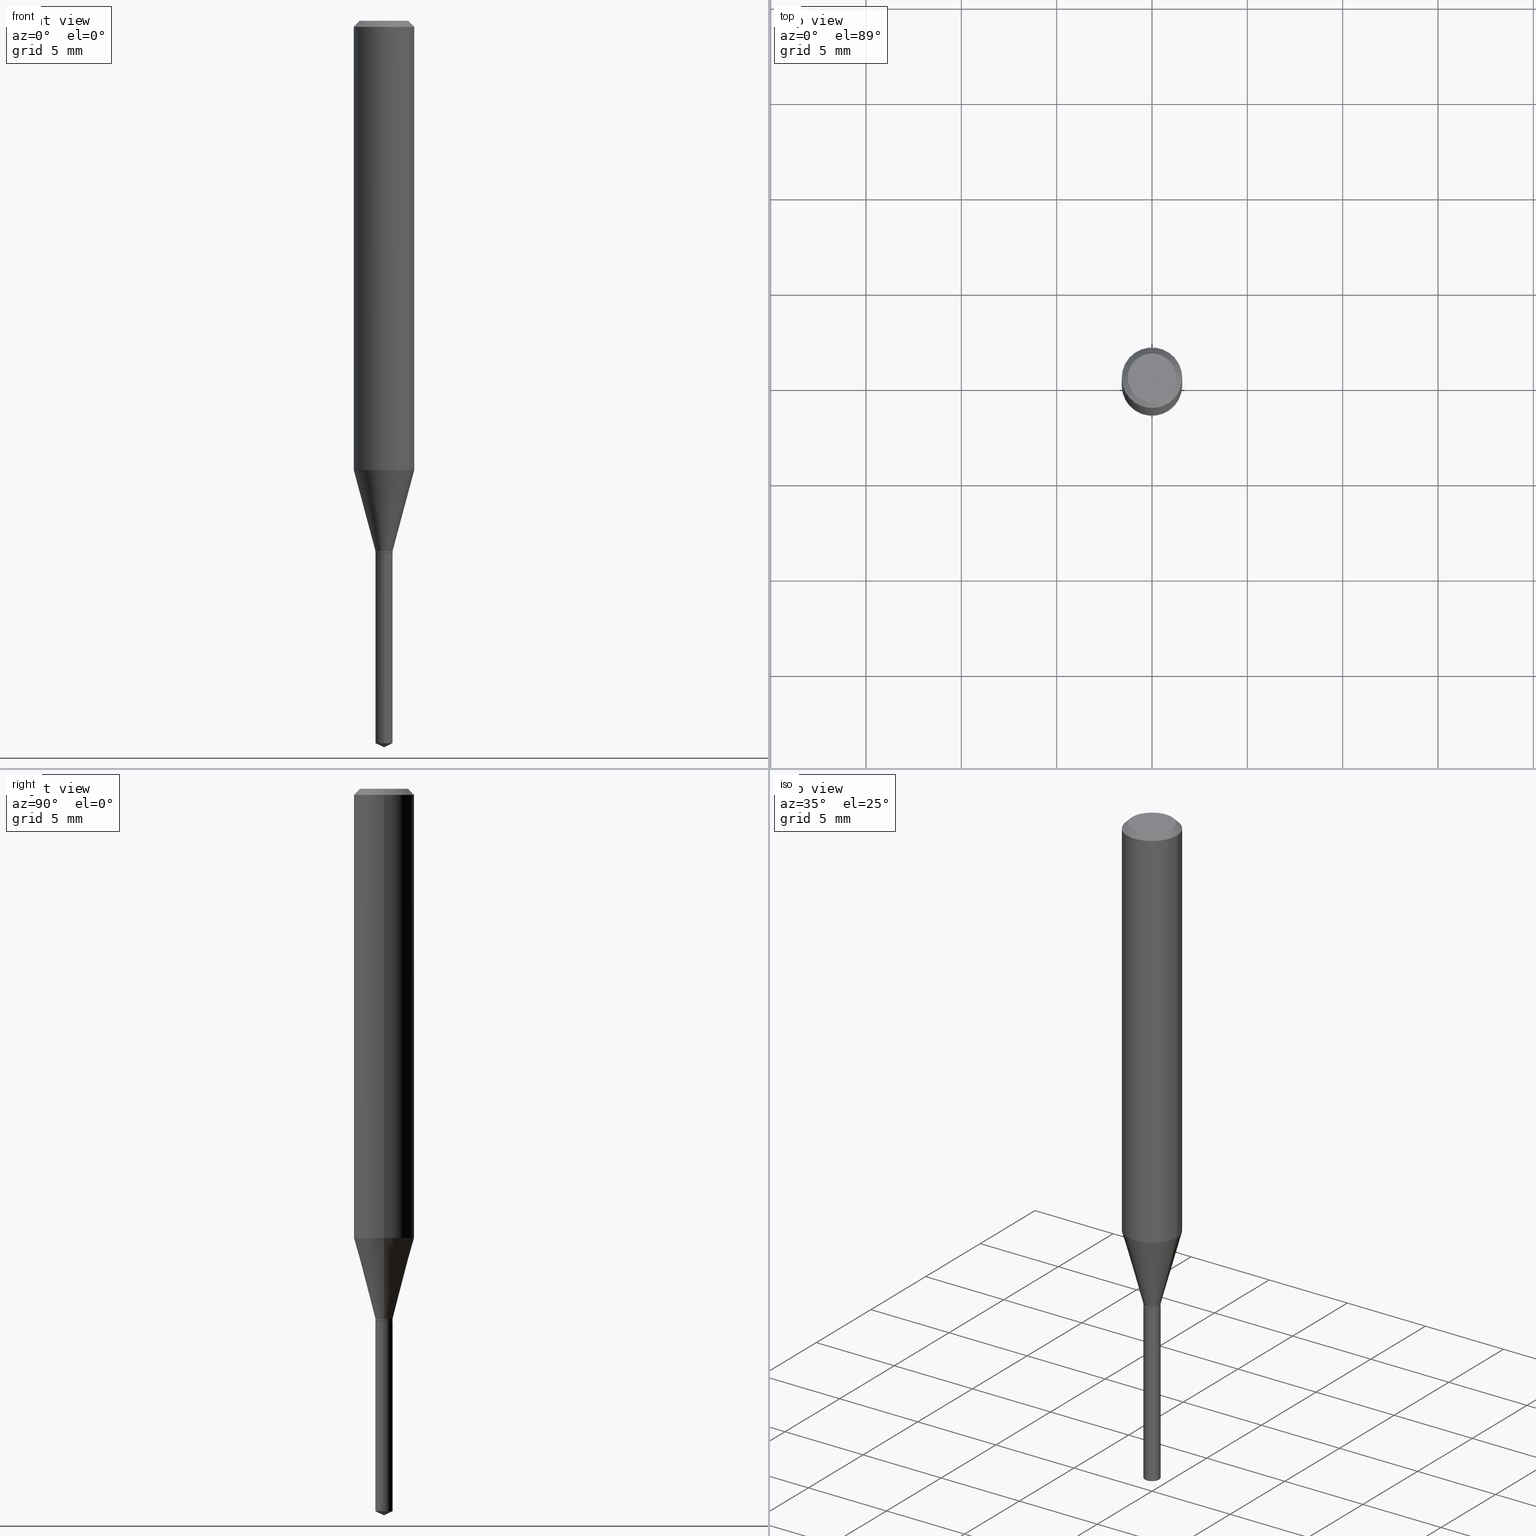
[diagram: canonical four-view strip — front | top / right | iso, engineering-drawing reading convention]
A machine part, canonical four-view strip (front | top / right | iso — engineering-drawing reading convention). The complete STEP part file that produces these views, byte-faithful:
ISO-10303-21;
HEADER;
FILE_DESCRIPTION (( 'STEP AP203' ),
    '1' );
FILE_NAME ('07313.STEP',
    '2024-04-23T20:23:08',
    ( '' ),
    ( '' ),
    'SwSTEP 2.0',
    'SolidWorks 2023',
    '' );
FILE_SCHEMA (( 'CONFIG_CONTROL_DESIGN' ));
ENDSEC;

DATA;
#1 = EDGE_LOOP ( 'NONE', ( #441, #448, #199, #353 ) ) ;
#2 = ADVANCED_FACE ( 'NONE', ( #422 ), #90, .F. ) ;
#3 = DIRECTION ( 'NONE',  ( -2.445399690415121530E-29, 3.491580316559632610E-15, 1.000000000000000000 ) ) ;
#4 = CARTESIAN_POINT ( 'NONE',  ( 2.690015686803650369E-29, -3.840629472727460101E-15, -1.100000000000000089 ) ) ;
#5 = AXIS2_PLACEMENT_3D ( 'NONE', #134, #209, #207 ) ;
#6 = EDGE_CURVE ( 'NONE', #192, #401, #397, .T. ) ;
#7 = CIRCLE ( 'NONE', #146, 0.01770000000000000046 ) ;
#8 = VERTEX_POINT ( 'NONE', #40 ) ;
#9 = CC_DESIGN_PERSON_AND_ORGANIZATION_ASSIGNMENT ( #459, #127, ( #184 ) ) ;
#10 = PERSON_AND_ORGANIZATION ( #159, #68 ) ;
#11 = CARTESIAN_POINT ( 'NONE',  ( -0.06250000000000000000, -1.196914218528098543E-15, -0.01250000000000008049 ) ) ;
#12 = COORDINATED_UNIVERSAL_TIME_OFFSET ( 5, 0, .BEHIND. ) ;
#13 = CARTESIAN_POINT ( 'NONE',  ( -0.01720000000000000001, -3.715766895002611718E-15, -1.100000000000000089 ) ) ;
#14 = CALENDAR_DATE ( 2024, 23, 4 ) ;
#15 = VECTOR ( 'NONE', #341, 39.37007874015748143 ) ;
#16 = LINE ( 'NONE', #428, #79 ) ;
#17 = EDGE_CURVE ( 'NONE', #147, #364, #452, .T. ) ;
#18 = CARTESIAN_POINT ( 'NONE',  ( 0.000000000000000000, 0.000000000000000000, 0.000000000000000000 ) ) ;
#19 = DIRECTION ( 'NONE',  ( -2.445468806185136597E-29, 3.491481338843145583E-15, 1.000000000000000000 ) ) ;
#20 = ADVANCED_FACE ( 'NONE', ( #196 ), #155, .T. ) ;
#21 = LINE ( 'NONE', #113, #92 ) ;
#22 = VECTOR ( 'NONE', #358, 39.37007874015748143 ) ;
#23 = AXIS2_PLACEMENT_3D ( 'NONE', #316, #190, #312 ) ;
#24 = ORIENTED_EDGE ( 'NONE', *, *, #73, .T. ) ;
#25 = CIRCLE ( 'NONE', #489, 0.01769999999999999699 ) ;
#26 = VECTOR ( 'NONE', #217, 39.37007874015748143 ) ;
#27 = DIRECTION ( 'NONE',  ( -2.445468806185136597E-29, 3.491481338843145583E-15, 1.000000000000000000 ) ) ;
#28 = ORIENTED_EDGE ( 'NONE', *, *, #167, .T. ) ;
#29 = PRODUCT_DEFINITION_SHAPE ( 'NONE', 'NONE',  #329 ) ;
#30 = CARTESIAN_POINT ( 'NONE',  ( -0.06250000000000005551, 4.440892098500630106E-16, -3.074334431409318916E-30 ) ) ;
#31 = VERTEX_POINT ( 'NONE', #349 ) ;
#32 = DIRECTION ( 'NONE',  ( 2.445468806185136597E-29, -3.491481338843145583E-15, -1.000000000000000000 ) ) ;
#33 = ORIENTED_EDGE ( 'NONE', *, *, #144, .T. ) ;
#34 = CIRCLE ( 'NONE', #411, 0.06250000000000000000 ) ;
#35 = EDGE_CURVE ( 'NONE', #77, #85, #25, .T. ) ;
#36 = CONICAL_SURFACE ( 'NONE', #372, 0.01770000000000000046, 0.2617993877991499629 ) ;
#37 = FACE_OUTER_BOUND ( 'NONE', #373, .T. ) ;
#38 = VERTEX_POINT ( 'NONE', #381 ) ;
#39 = MECHANICAL_CONTEXT ( 'NONE', #64, 'mechanical' ) ;
#40 = CARTESIAN_POINT ( 'NONE',  ( -0.06250000000000012490, -2.794274130170721718E-15, -0.9275041238209144057 ) ) ;
#41 = ADVANCED_FACE ( 'NONE', ( #272 ), #80, .T. ) ;
#42 = DIRECTION ( 'NONE',  ( -2.445399690415121810E-29, 3.491580316559632610E-15, 1.000000000000000000 ) ) ;
#43 = ORIENTED_EDGE ( 'NONE', *, *, #419, .F. ) ;
#44 =( NAMED_UNIT ( * ) SI_UNIT ( $, .STERADIAN. ) SOLID_ANGLE_UNIT ( ) );
#45 = CC_DESIGN_PERSON_AND_ORGANIZATION_ASSIGNMENT ( #250, #200, ( #317 ) ) ;
#46 = DIRECTION ( 'NONE',  ( 1.000000000000000000, -6.982962677686266711E-15, 0.000000000000000000 ) ) ;
#47 = DIRECTION ( 'NONE',  ( 1.000000000000000000, -6.982962677686271444E-15, 0.000000000000000000 ) ) ;
#48 = EDGE_LOOP ( 'NONE', ( #342, #340, #315 ) ) ;
#49 = ADVANCED_FACE ( 'NONE', ( #136 ), #283, .F. ) ;
#50 = DIRECTION ( 'NONE',  ( -2.445399690415121530E-29, 3.491580316559632610E-15, 1.000000000000000000 ) ) ;
#51 = AXIS2_PLACEMENT_3D ( 'NONE', #257, #224, #338 ) ;
#52 = CC_DESIGN_APPROVAL ( #249, ( #329 ) ) ;
#53 = DIRECTION ( 'NONE',  ( 1.000000000000000000, -6.982962677686265922E-15, 4.876176775795935232E-29 ) ) ;
#54 = CARTESIAN_POINT ( 'NONE',  ( 2.690015686803650369E-29, -3.840629472727460101E-15, -1.100000000000000089 ) ) ;
#55 = PERSON_AND_ORGANIZATION_ROLE ( 'classification_officer' ) ;
#56 = ADVANCED_FACE ( 'NONE', ( #100 ), #205, .T. ) ;
#57 = DIRECTION ( 'NONE',  ( 1.000000000000000000, -6.982962677686270655E-15, 0.000000000000000000 ) ) ;
#58 = APPROVAL_ROLE ( '' ) ;
#59 = CARTESIAN_POINT ( 'NONE',  ( 0.01720000000000000001, -3.960736430783664280E-15, -1.100000000000000089 ) ) ;
#60 = CC_DESIGN_PERSON_AND_ORGANIZATION_ASSIGNMENT ( #355, #99, ( #317 ) ) ;
#61 = AXIS2_PLACEMENT_3D ( 'NONE', #294, #440, #334 ) ;
#62 = CARTESIAN_POINT ( 'NONE',  ( 2.268182402412122745E-29, -3.238363340020784728E-15, -0.9275041238209144057 ) ) ;
#63 = ADVANCED_FACE ( 'NONE', ( #170 ), #256, .T. ) ;
#64 = APPLICATION_CONTEXT ( 'configuration controlled 3d designs of mechanical parts and assemblies' ) ;
#65 = DIRECTION ( 'NONE',  ( -2.445399690415121530E-29, 3.491580316559632610E-15, 1.000000000000000000 ) ) ;
#66 = EDGE_LOOP ( 'NONE', ( #274, #231, #439, #225 ) ) ;
#67 = DIRECTION ( 'NONE',  ( -2.445468806185136597E-29, 3.491481338843145583E-15, 1.000000000000000000 ) ) ;
#68 = ORGANIZATION ( 'UNSPECIFIED', 'UNSPECIFIED', '' ) ;
#69 = ORIENTED_EDGE ( 'NONE', *, *, #144, .F. ) ;
#70 = DIRECTION ( 'NONE',  ( -6.982962677686265133E-15, -1.000000000000000000, 0.000000000000000000 ) ) ;
#71 = ORIENTED_EDGE ( 'NONE', *, *, #303, .F. ) ;
#72 = DIRECTION ( 'NONE',  ( -1.000000000000000000, 6.982962677686266711E-15, 0.000000000000000000 ) ) ;
#73 = EDGE_CURVE ( 'NONE', #264, #302, #16, .T. ) ;
#74 = ORIENTED_EDGE ( 'NONE', *, *, #275, .T. ) ;
#75 = CARTESIAN_POINT ( 'NONE',  ( 2.690015686803650369E-29, -3.840629472727460101E-15, -1.100000000000000089 ) ) ;
#76 = CIRCLE ( 'NONE', #473, 0.01770000000000000046 ) ;
#77 = VERTEX_POINT ( 'NONE', #471 ) ;
#78 = CC_DESIGN_PERSON_AND_ORGANIZATION_ASSIGNMENT ( #174, #102, ( #329 ) ) ;
#79 = VECTOR ( 'NONE', #288, 39.37007874015748854 ) ;
#80 = CYLINDRICAL_SURFACE ( 'NONE', #398, 0.06250000000000005551 ) ;
#81 = ADVANCED_FACE ( 'NONE', ( #391 ), #285, .T. ) ;
#82 = CARTESIAN_POINT ( 'NONE',  ( -1.235984393950199948E-16, -0.01770000000000384113, -1.100000000000000089 ) ) ;
#83 = DIRECTION ( 'NONE',  ( -2.445468806185136597E-29, 3.491481338843145583E-15, 1.000000000000000000 ) ) ;
#84 = LENGTH_MEASURE_WITH_UNIT ( LENGTH_MEASURE( 0.02539999999999999897 ), #276 );
#85 = VERTEX_POINT ( 'NONE', #292 ) ;
#86 = DIRECTION ( 'NONE',  ( 2.445468806185136597E-29, -3.491481338843145583E-15, -1.000000000000000000 ) ) ;
#87 = EDGE_CURVE ( 'NONE', #124, #85, #168, .T. ) ;
#88 = CARTESIAN_POINT ( 'NONE',  ( -9.260740279983036507E-28, 1.322265303911854087E-13, 37.87007874015748143 ) ) ;
#89 = DIRECTION ( 'NONE',  ( 0.7071067811865453523, -7.319954787623248157E-15, -0.7071067811865496822 ) ) ;
#90 = PLANE ( 'NONE',  #347 ) ;
#91 = CYLINDRICAL_SURFACE ( 'NONE', #119, 0.01770000000000000046 ) ;
#92 = VECTOR ( 'NONE', #267, 39.37007874015748143 ) ;
#93 = CONICAL_SURFACE ( 'NONE', #188, 84.42940631927444883, 1.134464013796316451 ) ;
#94 = CALENDAR_DATE ( 2024, 23, 4 ) ;
#95 = MANIFOLD_SOLID_BREP ( 'Body-Move/Copy2[2]', #421 ) ;
#96 = AXIS2_PLACEMENT_3D ( 'NONE', #62, #320, #431 ) ;
#97 = DIRECTION ( 'NONE',  ( -6.328713451373376478E-15, -0.9063077870366493816, 0.4226182617407006070 ) ) ;
#98 = EDGE_CURVE ( 'NONE', #85, #401, #251, .T. ) ;
#99 = PERSON_AND_ORGANIZATION_ROLE ( 'design_supplier' ) ;
#100 = FACE_OUTER_BOUND ( 'NONE', #458, .T. ) ;
#101 = APPROVAL ( #357, 'UNSPECIFIED' ) ;
#102 = PERSON_AND_ORGANIZATION_ROLE ( 'creator' ) ;
#103 = CARTESIAN_POINT ( 'NONE',  ( 3.668099535622682155E-29, -5.237370474839448718E-15, -1.500000000000000222 ) ) ;
#104 = DATE_AND_TIME ( #465, #418 ) ;
#105 = DIRECTION ( 'NONE',  ( 1.000000000000000000, -6.982962677686265922E-15, 0.000000000000000000 ) ) ;
#106 = AXIS2_PLACEMENT_3D ( 'NONE', #54, #361, #290 ) ;
#107 = CARTESIAN_POINT ( 'NONE',  ( 2.688792952400557567E-29, -3.838883732058038598E-15, -1.099499999999999922 ) ) ;
#108 = LINE ( 'NONE', #260, #322 ) ;
#109 = ORIENTED_EDGE ( 'NONE', *, *, #117, .T. ) ;
#110 = DIRECTION ( 'NONE',  ( 1.000000000000000000, -6.982962677686271444E-15, 0.000000000000000000 ) ) ;
#111 = CYLINDRICAL_SURFACE ( 'NONE', #450, 0.01770000000000000046 ) ;
#112 = VERTEX_POINT ( 'NONE', #13 ) ;
#113 = CARTESIAN_POINT ( 'NONE',  ( -0.01720000000000000001, -3.718416122176722919E-15, -1.100000000000000089 ) ) ;
#114 = VERTEX_POINT ( 'NONE', #394 ) ;
#115 = CIRCLE ( 'NONE', #96, 0.06250000000000011102 ) ;
#116 = CARTESIAN_POINT ( 'NONE',  ( 3.647992100698539109E-29, -5.208443333011366930E-15, -1.491746354450656620 ) ) ;
#117 = EDGE_CURVE ( 'NONE', #31, #313, #462, .T. ) ;
#118 =( GEOMETRIC_REPRESENTATION_CONTEXT ( 3 ) GLOBAL_UNCERTAINTY_ASSIGNED_CONTEXT ( ( #445 ) ) GLOBAL_UNIT_ASSIGNED_CONTEXT ( ( #191, #153, #44 ) ) REPRESENTATION_CONTEXT ( 'NONE', 'WORKASPACE' ) );
#119 = AXIS2_PLACEMENT_3D ( 'NONE', #246, #392, #53 ) ;
#120 = DIRECTION ( 'NONE',  ( -2.445468806185136597E-29, 3.491481338843145583E-15, 1.000000000000000000 ) ) ;
#121 = DESIGN_CONTEXT ( 'detailed design', #389, 'design' ) ;
#122 = EDGE_LOOP ( 'NONE', ( #414, #319, #480, #331 ) ) ;
#123 = DIRECTION ( 'NONE',  ( -6.982962677686265133E-15, -1.000000000000000000, 0.000000000000000000 ) ) ;
#124 = VERTEX_POINT ( 'NONE', #176 ) ;
#125 = AXIS2_PLACEMENT_3D ( 'NONE', #139, #178, #330 ) ;
#126 = EDGE_CURVE ( 'NONE', #302, #8, #460, .T. ) ;
#127 = PERSON_AND_ORGANIZATION_ROLE ( 'design_owner' ) ;
#128 = ORIENTED_EDGE ( 'NONE', *, *, #173, .T. ) ;
#129 = DATE_AND_TIME ( #94, #293 ) ;
#130 = CARTESIAN_POINT ( 'NONE',  ( 2.690015686803650369E-29, -3.840629472727460101E-15, -1.100000000000000089 ) ) ;
#131 = FACE_OUTER_BOUND ( 'NONE', #333, .T. ) ;
#132 = DIRECTION ( 'NONE',  ( -2.445468806185136597E-29, 3.491481338843145583E-15, 1.000000000000000000 ) ) ;
#133 = DATE_TIME_ROLE ( 'classification_date' ) ;
#134 = CARTESIAN_POINT ( 'NONE',  ( 2.690015686803650369E-29, -3.840629472727460101E-15, -1.100000000000000089 ) ) ;
#135 = EDGE_CURVE ( 'NONE', #269, #154, #474, .T. ) ;
#136 = FACE_OUTER_BOUND ( 'NONE', #407, .T. ) ;
#137 = CIRCLE ( 'NONE', #436, 0.01720000000000000001 ) ;
#138 = CONICAL_SURFACE ( 'NONE', #467, 0.06250000000000000000, 0.7853981633974452814 ) ;
#139 = CARTESIAN_POINT ( 'NONE',  ( 3.647992100698539109E-29, -5.208443333011366930E-15, -1.491746354450656620 ) ) ;
#140 = AXIS2_PLACEMENT_3D ( 'NONE', #187, #65, #475 ) ;
#141 = CARTESIAN_POINT ( 'NONE',  ( 2.677054702130869363E-29, -3.822124621631592164E-15, -1.094700000000000228 ) ) ;
#142 = FACE_OUTER_BOUND ( 'NONE', #158, .T. ) ;
#143 = EDGE_LOOP ( 'NONE', ( #278, #237 ) ) ;
#144 = EDGE_CURVE ( 'NONE', #38, #114, #362, .T. ) ;
#145 = FACE_OUTER_BOUND ( 'NONE', #405, .T. ) ;
#146 = AXIS2_PLACEMENT_3D ( 'NONE', #453, #120, #47 ) ;
#147 = VERTEX_POINT ( 'NONE', #11 ) ;
#148 = DIRECTION ( 'NONE',  ( -2.445468806185136877E-29, 3.491481338843145188E-15, 1.000000000000000000 ) ) ;
#149 = EDGE_LOOP ( 'NONE', ( #266, #378, #223, #403 ) ) ;
#150 = ADVANCED_FACE ( 'NONE', ( #131 ), #91, .T. ) ;
#151 = DIRECTION ( 'NONE',  ( -1.000000000000000000, 6.982962677686266711E-15, 0.000000000000000000 ) ) ;
#152 = ORIENTED_EDGE ( 'NONE', *, *, #162, .F. ) ;
#153 =( NAMED_UNIT ( * ) PLANE_ANGLE_UNIT ( ) SI_UNIT ( $, .RADIAN. ) );
#154 = VERTEX_POINT ( 'NONE', #252 ) ;
#155 = CONICAL_SURFACE ( 'NONE', #222, 84.42940631927444883, 1.134464013796316451 ) ;
#156 = AXIS2_PLACEMENT_3D ( 'NONE', #404, #67, #327 ) ;
#157 = CARTESIAN_POINT ( 'NONE',  ( 0.06250000000000000000, -4.724246415962602840E-16, -0.01250000000000008049 ) ) ;
#158 = EDGE_LOOP ( 'NONE', ( #348, #456, #227, #165 ) ) ;
#159 = PERSON ( 'UNSPECIFIED', 'UNSPECIFIED', 'UNSPECIFIED', ('UNSPECIFIED'), ('UNSPECIFIED'), ('UNSPECIFIED') ) ;
#160 = DIRECTION ( 'NONE',  ( -6.982962677686266711E-15, -1.000000000000000000, 3.520397390770449137E-15 ) ) ;
#161 = ORIENTED_EDGE ( 'NONE', *, *, #87, .F. ) ;
#162 = EDGE_CURVE ( 'NONE', #8, #302, #115, .T. ) ;
#163 = DIRECTION ( 'NONE',  ( 2.445399690415121250E-29, -3.491580316559632610E-15, -1.000000000000000000 ) ) ;
#164 = CIRCLE ( 'NONE', #51, 0.01770000000000000046 ) ;
#165 = ORIENTED_EDGE ( 'NONE', *, *, #369, .F. ) ;
#166 = DATE_AND_TIME ( #169, #442 ) ;
#167 = EDGE_CURVE ( 'NONE', #38, #112, #229, .T. ) ;
#168 = LINE ( 'NONE', #103, #179 ) ;
#169 = CALENDAR_DATE ( 2024, 23, 4 ) ;
#170 = FACE_OUTER_BOUND ( 'NONE', #484, .T. ) ;
#171 = LOCAL_TIME ( 16, 23, 8.000000000000000000, #12 ) ;
#172 = DIRECTION ( 'NONE',  ( -2.445468806185136597E-29, 3.491481338843145583E-15, 1.000000000000000000 ) ) ;
#173 = EDGE_CURVE ( 'NONE', #112, #38, #137, .T. ) ;
#174 = PERSON_AND_ORGANIZATION ( #159, #68 ) ;
#175 = DIRECTION ( 'NONE',  ( -2.445468806185136597E-29, 3.491481338843145583E-15, 1.000000000000000000 ) ) ;
#176 = CARTESIAN_POINT ( 'NONE',  ( 3.668099535622682715E-29, -5.237370474839449507E-15, -1.500000000000000222 ) ) ;
#177 = VECTOR ( 'NONE', #221, 39.37007874015748854 ) ;
#178 = DIRECTION ( 'NONE',  ( -2.445399690415121530E-29, 3.491580316559632610E-15, 1.000000000000000000 ) ) ;
#179 = VECTOR ( 'NONE', #97, 39.37007874015748143 ) ;
#180 = EDGE_LOOP ( 'NONE', ( #186, #128, #33, #258 ) ) ;
#181 = DIRECTION ( 'NONE',  ( -2.445468806185136597E-29, 3.491481338843145583E-15, 1.000000000000000000 ) ) ;
#182 = ADVANCED_FACE ( 'NONE', ( #470 ), #444, .T. ) ;
#183 = ORIENTED_EDGE ( 'NONE', *, *, #126, .F. ) ;
#184 = PRODUCT ( '07313', '07313', '', ( #39 ) ) ;
#185 = LINE ( 'NONE', #483, #247 ) ;
#186 = ORIENTED_EDGE ( 'NONE', *, *, #336, .F. ) ;
#187 = CARTESIAN_POINT ( 'NONE',  ( 2.690015686803650369E-29, -3.840629472727460101E-15, -1.100000000000000089 ) ) ;
#188 = AXIS2_PLACEMENT_3D ( 'NONE', #377, #238, #160 ) ;
#189 = EDGE_CURVE ( 'NONE', #31, #114, #311, .T. ) ;
#190 = DIRECTION ( 'NONE',  ( -2.445468806185136597E-29, 3.491481338843145583E-15, 1.000000000000000000 ) ) ;
#191 =( CONVERSION_BASED_UNIT ( 'INCH', #84 ) LENGTH_UNIT ( ) NAMED_UNIT ( #235 ) );
#192 = VERTEX_POINT ( 'NONE', #300 ) ;
#193 = CARTESIAN_POINT ( 'NONE',  ( 3.056836007731440539E-31, -4.364351673553960451E-17, -0.01250000000000008049 ) ) ;
#194 = VECTOR ( 'NONE', #89, 39.37007874015748143 ) ;
#195 = ORIENTED_EDGE ( 'NONE', *, *, #481, .F. ) ;
#196 = FACE_OUTER_BOUND ( 'NONE', #48, .T. ) ;
#197 = EDGE_CURVE ( 'NONE', #313, #264, #365, .T. ) ;
#198 = LINE ( 'NONE', #157, #194 ) ;
#199 = ORIENTED_EDGE ( 'NONE', *, *, #98, .T. ) ;
#200 = PERSON_AND_ORGANIZATION_ROLE ( 'creator' ) ;
#201 = DIRECTION ( 'NONE',  ( -6.982962677686266711E-15, -1.000000000000000000, 3.520397390770449137E-15 ) ) ;
#202 = VECTOR ( 'NONE', #406, 39.37007874015748143 ) ;
#203 = AXIS2_PLACEMENT_3D ( 'NONE', #490, #307, #273 ) ;
#204 = ADVANCED_FACE ( 'NONE', ( #218 ), #36, .T. ) ;
#205 = CONICAL_SURFACE ( 'NONE', #286, 0.01770000000000000046, 0.2617993877991499629 ) ;
#206 = APPROVAL_ROLE ( '' ) ;
#207 = DIRECTION ( 'NONE',  ( -6.982962677686265133E-15, -1.000000000000000000, 0.000000000000000000 ) ) ;
#208 = SECURITY_CLASSIFICATION_LEVEL ( 'unclassified' ) ;
#209 = DIRECTION ( 'NONE',  ( -2.445399690415121530E-29, 3.491580316559632610E-15, 1.000000000000000000 ) ) ;
#210 = PERSON_AND_ORGANIZATION ( #159, #68 ) ;
#211 = CARTESIAN_POINT ( 'NONE',  ( 2.690015686803650369E-29, -3.840629472727460101E-15, -1.100000000000000089 ) ) ;
#212 = AXIS2_PLACEMENT_3D ( 'NONE', #277, #83, #46 ) ;
#213 = DATE_TIME_ROLE ( 'creation_date' ) ;
#214 = AXIS2_PLACEMENT_3D ( 'NONE', #416, #383, #123 ) ;
#215 = DIRECTION ( 'NONE',  ( 0.7071067811865218156, -2.468850131081987665E-15, 0.7071067811865732189 ) ) ;
#216 = ADVANCED_FACE ( 'NONE', ( #37 ), #111, .T. ) ;
#217 = DIRECTION ( 'NONE',  ( -2.445468806185136877E-29, 3.491481338843145188E-15, 1.000000000000000000 ) ) ;
#218 = FACE_OUTER_BOUND ( 'NONE', #351, .T. ) ;
#219 = ORIENTED_EDGE ( 'NONE', *, *, #189, .T. ) ;
#220 = AXIS2_PLACEMENT_3D ( 'NONE', #420, #241, #380 ) ;
#221 = DIRECTION ( 'NONE',  ( -0.2588190451025212391, 5.211531920934549464E-15, 0.9659258262890679791 ) ) ;
#222 = AXIS2_PLACEMENT_3D ( 'NONE', #88, #50, #201 ) ;
#223 = ORIENTED_EDGE ( 'NONE', *, *, #369, .T. ) ;
#224 = DIRECTION ( 'NONE',  ( -2.445468806185136597E-29, 3.491481338843145583E-15, 1.000000000000000000 ) ) ;
#225 = ORIENTED_EDGE ( 'NONE', *, *, #98, .F. ) ;
#226 = CARTESIAN_POINT ( 'NONE',  ( -0.04999999999999999584, 3.709698922520826725E-16, -1.592040838894077649E-18 ) ) ;
#227 = ORIENTED_EDGE ( 'NONE', *, *, #419, .T. ) ;
#228 = ADVANCED_FACE ( 'NONE', ( #437 ), #306, .T. ) ;
#229 = CIRCLE ( 'NONE', #354, 0.01720000000000000001 ) ;
#230 = LINE ( 'NONE', #332, #413 ) ;
#231 = ORIENTED_EDGE ( 'NONE', *, *, #395, .T. ) ;
#232 = CC_DESIGN_DATE_AND_TIME_ASSIGNMENT ( #430, #213, ( #329 ) ) ;
#233 = PERSON_AND_ORGANIZATION ( #159, #68 ) ;
#234 = CARTESIAN_POINT ( 'NONE',  ( 0.000000000000000000, 0.000000000000000000, 0.000000000000000000 ) ) ;
#235 = DIMENSIONAL_EXPONENTS ( 1.000000000000000000, 0.000000000000000000, 0.000000000000000000, 0.000000000000000000, 0.000000000000000000, 0.000000000000000000, 0.000000000000000000 ) ;
#236 = FACE_OUTER_BOUND ( 'NONE', #297, .T. ) ;
#237 = ORIENTED_EDGE ( 'NONE', *, *, #457, .T. ) ;
#238 = DIRECTION ( 'NONE',  ( -2.445399690415121530E-29, 3.491580316559632610E-15, 1.000000000000000000 ) ) ;
#239 = CC_DESIGN_SECURITY_CLASSIFICATION ( #337, ( #317 ) ) ;
#240 = ORIENTED_EDGE ( 'NONE', *, *, #197, .F. ) ;
#241 = DIRECTION ( 'NONE',  ( 0.000000000000000000, 0.000000000000000000, 1.000000000000000000 ) ) ;
#242 = DIRECTION ( 'NONE',  ( -6.982962677686265922E-15, -1.000000000000000000, 0.000000000000000000 ) ) ;
#243 = FACE_OUTER_BOUND ( 'NONE', #149, .T. ) ;
#244 = ORIENTED_EDGE ( 'NONE', *, *, #197, .T. ) ;
#245 = EDGE_CURVE ( 'NONE', #124, #77, #230, .T. ) ;
#246 = CARTESIAN_POINT ( 'NONE',  ( 0.000000000000000000, 0.000000000000000000, 0.000000000000000000 ) ) ;
#247 = VECTOR ( 'NONE', #148, 39.37007874015748143 ) ;
#248 = APPROVAL_PERSON_ORGANIZATION ( #432, #101, #206 ) ;
#249 = APPROVAL ( #486, 'UNSPECIFIED' ) ;
#250 = PERSON_AND_ORGANIZATION ( #159, #68 ) ;
#251 = LINE ( 'NONE', #435, #22 ) ;
#252 = CARTESIAN_POINT ( 'NONE',  ( 0.04999999999999999584, -4.077247707424184212E-16, -1.592040838888913461E-18 ) ) ;
#253 = APPROVAL_DATE_TIME ( #469, #443 ) ;
#254 = DIRECTION ( 'NONE',  ( 1.000000000000000000, -6.982962677686265922E-15, 4.875957971899673662E-29 ) ) ;
#255 = APPROVAL_DATE_TIME ( #166, #101 ) ;
#256 = CYLINDRICAL_SURFACE ( 'NONE', #488, 0.06250000000000005551 ) ;
#257 = CARTESIAN_POINT ( 'NONE',  ( 2.688792952400557567E-29, -3.838883732058038598E-15, -1.099499999999999922 ) ) ;
#258 = ORIENTED_EDGE ( 'NONE', *, *, #189, .F. ) ;
#259 = ADVANCED_FACE ( 'NONE', ( #145 ), #410, .T. ) ;
#260 = CARTESIAN_POINT ( 'NONE',  ( -0.06250000000000000000, 3.927916506198521080E-16, -0.01250000000000008049 ) ) ;
#261 = ORIENTED_EDGE ( 'NONE', *, *, #388, .T. ) ;
#262 = CIRCLE ( 'NONE', #23, 0.04999999999999999584 ) ;
#263 = DIRECTION ( 'NONE',  ( 1.000000000000000000, -6.982962677686270655E-15, 0.000000000000000000 ) ) ;
#264 = VERTEX_POINT ( 'NONE', #479 ) ;
#265 = LINE ( 'NONE', #30, #202 ) ;
#266 = ORIENTED_EDGE ( 'NONE', *, *, #446, .F. ) ;
#267 = DIRECTION ( 'NONE',  ( -0.7071067811865218156, 7.493145998870261075E-15, 0.7071067811865732189 ) ) ;
#268 = CC_DESIGN_DATE_AND_TIME_ASSIGNMENT ( #104, #133, ( #337 ) ) ;
#269 = VERTEX_POINT ( 'NONE', #226 ) ;
#270 = AXIS2_PLACEMENT_3D ( 'NONE', #402, #32, #72 ) ;
#271 = CARTESIAN_POINT ( 'NONE',  ( 1.257660642295646314E-16, 0.01769999999999615978, -1.100000000000000089 ) ) ;
#272 = FACE_OUTER_BOUND ( 'NONE', #122, .T. ) ;
#273 = DIRECTION ( 'NONE',  ( -1.000000000000000000, 6.982962677686265922E-15, -4.876176775795935793E-29 ) ) ;
#274 = ORIENTED_EDGE ( 'NONE', *, *, #343, .T. ) ;
#275 = EDGE_CURVE ( 'NONE', #8, #147, #265, .T. ) ;
#276 =( LENGTH_UNIT ( ) NAMED_UNIT ( * ) SI_UNIT ( $, .METRE. ) );
#277 = CARTESIAN_POINT ( 'NONE',  ( 3.056836007731440539E-31, -4.364351673553960451E-17, -0.01250000000000008049 ) ) ;
#278 = ORIENTED_EDGE ( 'NONE', *, *, #135, .T. ) ;
#279 = CIRCLE ( 'NONE', #125, 0.01769999999999999699 ) ;
#280 = APPLICATION_PROTOCOL_DEFINITION ( 'international standard', 'config_control_design', 1994, #389 ) ;
#281 = ORIENTED_EDGE ( 'NONE', *, *, #336, .T. ) ;
#282 = COORDINATED_UNIVERSAL_TIME_OFFSET ( 5, 0, .BEHIND. ) ;
#283 = PLANE ( 'NONE',  #106 ) ;
#284 = APPROVAL_STATUS ( 'not_yet_approved' ) ;
#285 = CYLINDRICAL_SURFACE ( 'NONE', #5, 0.01770000000000000046 ) ;
#286 = AXIS2_PLACEMENT_3D ( 'NONE', #433, #175, #326 ) ;
#287 = APPROVAL_DATE_TIME ( #129, #249 ) ;
#288 = DIRECTION ( 'NONE',  ( 0.2588190451025212391, 1.565188264969622362E-15, 0.9659258262890679791 ) ) ;
#289 = EDGE_CURVE ( 'NONE', #401, #192, #76, .T. ) ;
#290 = DIRECTION ( 'NONE',  ( 1.000000000000000000, -6.982962677686265922E-15, 4.876176775795935793E-29 ) ) ;
#291 = APPROVAL_ROLE ( '' ) ;
#292 = CARTESIAN_POINT ( 'NONE',  ( -1.235984393950104298E-16, -0.01770000000000520810, -1.491746354450656620 ) ) ;
#293 = LOCAL_TIME ( 16, 23, 8.000000000000000000, #463 ) ;
#294 = CARTESIAN_POINT ( 'NONE',  ( 2.677054702130869363E-29, -3.822124621631592164E-15, -1.094700000000000228 ) ) ;
#295 = ADVANCED_FACE ( 'NONE', ( #142 ), #339, .T. ) ;
#296 = CARTESIAN_POINT ( 'NONE',  ( 0.06250000000000000000, -4.800786840909312308E-16, -0.01250000000000008049 ) ) ;
#297 = EDGE_LOOP ( 'NONE', ( #161, #461, #476 ) ) ;
#298 = CARTESIAN_POINT ( 'NONE',  ( 0.000000000000000000, 0.000000000000000000, 0.000000000000000000 ) ) ;
#299 = ORIENTED_EDGE ( 'NONE', *, *, #303, .T. ) ;
#300 = CARTESIAN_POINT ( 'NONE',  ( 1.257660642295742703E-16, 0.01769999999999615978, -1.100000000000000089 ) ) ;
#301 = CLOSED_SHELL ( 'NONE', ( #81, #374, #20, #182, #2 ) ) ;
#302 = VERTEX_POINT ( 'NONE', #447 ) ;
#303 = EDGE_CURVE ( 'NONE', #114, #31, #164, .T. ) ;
#304 = DIRECTION ( 'NONE',  ( -2.445399690415121530E-29, 3.491580316559632610E-15, 1.000000000000000000 ) ) ;
#305 = ORIENTED_EDGE ( 'NONE', *, *, #117, .F. ) ;
#306 = CONICAL_SURFACE ( 'NONE', #385, 0.01720000000000000001, 0.7853981633974119747 ) ;
#307 = DIRECTION ( 'NONE',  ( 2.438088387897960049E-29, -3.491481338843145188E-15, -1.000000000000000000 ) ) ;
#308 = CC_DESIGN_APPROVAL ( #101, ( #337 ) ) ;
#309 = ORIENTED_EDGE ( 'NONE', *, *, #6, .T. ) ;
#310 = EDGE_CURVE ( 'NONE', #313, #8, #368, .T. ) ;
#311 = CIRCLE ( 'NONE', #387, 0.01770000000000000046 ) ;
#312 = DIRECTION ( 'NONE',  ( 1.000000000000000000, -6.982962677686265922E-15, 4.875957971899673662E-29 ) ) ;
#313 = VERTEX_POINT ( 'NONE', #363 ) ;
#314 = PLANE ( 'NONE',  #203 ) ;
#315 = ORIENTED_EDGE ( 'NONE', *, *, #35, .F. ) ;
#316 = CARTESIAN_POINT ( 'NONE',  ( 3.893286209682126177E-47, -5.558580879666067980E-33, -1.592040838891559689E-18 ) ) ;
#317 = PRODUCT_DEFINITION_FORMATION_WITH_SPECIFIED_SOURCE ( 'ANY', '', #184, .NOT_KNOWN. ) ;
#318 = ORIENTED_EDGE ( 'NONE', *, *, #323, .F. ) ;
#319 = ORIENTED_EDGE ( 'NONE', *, *, #162, .T. ) ;
#320 = DIRECTION ( 'NONE',  ( -2.445468806185136597E-29, 3.491481338843145583E-15, 1.000000000000000000 ) ) ;
#321 = CARTESIAN_POINT ( 'NONE',  ( 2.268182402412122745E-29, -3.238363340020784728E-15, -0.9275041238209144057 ) ) ;
#322 = VECTOR ( 'NONE', #367, 39.37007874015748143 ) ;
#323 = EDGE_CURVE ( 'NONE', #302, #364, #185, .T. ) ;
#324 = DIRECTION ( 'NONE',  ( 1.000000000000000000, -6.982962677686270655E-15, 0.000000000000000000 ) ) ;
#325 = SHAPE_DEFINITION_REPRESENTATION ( #29, #466 ) ;
#326 = DIRECTION ( 'NONE',  ( 1.000000000000000000, -6.982962677686271444E-15, 0.000000000000000000 ) ) ;
#327 = DIRECTION ( 'NONE',  ( 1.000000000000000000, -6.982962677686270655E-15, 0.000000000000000000 ) ) ;
#328 = APPROVAL_PERSON_ORGANIZATION ( #210, #443, #291 ) ;
#329 = PRODUCT_DEFINITION ( 'UNKNOWN', '', #317, #121 ) ;
#330 = DIRECTION ( 'NONE',  ( -6.982962677686265922E-15, -1.000000000000000000, 0.000000000000000000 ) ) ;
#331 = ORIENTED_EDGE ( 'NONE', *, *, #17, .F. ) ;
#332 = CARTESIAN_POINT ( 'NONE',  ( 3.668252923656895710E-29, -5.237152723863177100E-15, -1.500000000000000222 ) ) ;
#333 = EDGE_LOOP ( 'NONE', ( #299, #109, #417, #195 ) ) ;
#334 = DIRECTION ( 'NONE',  ( 1.000000000000000000, -6.982962677686271444E-15, 0.000000000000000000 ) ) ;
#335 = EDGE_LOOP ( 'NONE', ( #424, #309 ) ) ;
#336 = EDGE_CURVE ( 'NONE', #112, #31, #21, .T. ) ;
#337 = SECURITY_CLASSIFICATION ( '', '', #208 ) ;
#338 = DIRECTION ( 'NONE',  ( 1.000000000000000000, -6.982962677686271444E-15, 0.000000000000000000 ) ) ;
#339 = CONICAL_SURFACE ( 'NONE', #270, 0.06250000000000000000, 0.7853981633974452814 ) ;
#340 = ORIENTED_EDGE ( 'NONE', *, *, #87, .T. ) ;
#341 = DIRECTION ( 'NONE',  ( -2.445468806185136877E-29, 3.491481338843145188E-15, 1.000000000000000000 ) ) ;
#342 = ORIENTED_EDGE ( 'NONE', *, *, #245, .F. ) ;
#343 = EDGE_CURVE ( 'NONE', #85, #77, #279, .T. ) ;
#344 = ORIENTED_EDGE ( 'NONE', *, *, #310, .T. ) ;
#345 = DIRECTION ( 'NONE',  ( 1.000000000000000000, -6.982962677686266711E-15, 0.000000000000000000 ) ) ;
#346 = LOCAL_TIME ( 16, 23, 8.000000000000000000, #427 ) ;
#347 = AXIS2_PLACEMENT_3D ( 'NONE', #4, #163, #379 ) ;
#348 = ORIENTED_EDGE ( 'NONE', *, *, #457, .F. ) ;
#349 = CARTESIAN_POINT ( 'NONE',  ( -0.01770000000000000046, -3.704738112615278088E-15, -1.099499999999999922 ) ) ;
#350 = APPLICATION_PROTOCOL_DEFINITION ( 'international standard', 'config_control_design', 1994, #64 ) ;
#351 = EDGE_LOOP ( 'NONE', ( #449, #244, #24, #152 ) ) ;
#352 = VECTOR ( 'NONE', #42, 39.37007874015748143 ) ;
#353 = ORIENTED_EDGE ( 'NONE', *, *, #6, .F. ) ;
#354 = AXIS2_PLACEMENT_3D ( 'NONE', #130, #468, #57 ) ;
#355 = PERSON_AND_ORGANIZATION ( #159, #68 ) ;
#356 = CARTESIAN_POINT ( 'NONE',  ( -0.01770000000000000046, 1.257660642295377361E-16, -8.706515109751182648E-31 ) ) ;
#357 = APPROVAL_STATUS ( 'not_yet_approved' ) ;
#358 = DIRECTION ( 'NONE',  ( -2.445399690415121810E-29, 3.491580316559632610E-15, 1.000000000000000000 ) ) ;
#359 = DIRECTION ( 'NONE',  ( 1.000000000000000000, -6.982962677686266711E-15, 4.876176775795935232E-29 ) ) ;
#360 = CC_DESIGN_PERSON_AND_ORGANIZATION_ASSIGNMENT ( #10, #55, ( #337 ) ) ;
#361 = DIRECTION ( 'NONE',  ( -2.438088387897960049E-29, 3.491481338843145188E-15, 1.000000000000000000 ) ) ;
#362 = LINE ( 'NONE', #59, #482 ) ;
#363 = CARTESIAN_POINT ( 'NONE',  ( -0.01770000000000000046, -3.704738112615278088E-15, -1.094700000000000228 ) ) ;
#364 = VERTEX_POINT ( 'NONE', #296 ) ;
#365 = CIRCLE ( 'NONE', #61, 0.01770000000000000046 ) ;
#366 = AXIS2_PLACEMENT_3D ( 'NONE', #321, #19, #105 ) ;
#367 = DIRECTION ( 'NONE',  ( -0.7071067811865453523, 2.468850131082234184E-15, -0.7071067811865496822 ) ) ;
#368 = LINE ( 'NONE', #400, #177 ) ;
#369 = EDGE_CURVE ( 'NONE', #269, #147, #108, .T. ) ;
#370 = DIRECTION ( 'NONE',  ( 1.000000000000000000, -6.982962677686265922E-15, 4.876176775795935232E-29 ) ) ;
#371 = DIRECTION ( 'NONE',  ( 1.000000000000000000, -6.982962677686271444E-15, 0.000000000000000000 ) ) ;
#372 = AXIS2_PLACEMENT_3D ( 'NONE', #141, #27, #110 ) ;
#373 = EDGE_LOOP ( 'NONE', ( #305, #219, #478, #240 ) ) ;
#374 = ADVANCED_FACE ( 'NONE', ( #236 ), #93, .T. ) ;
#375 = LINE ( 'NONE', #271, #352 ) ;
#376 = ORIENTED_EDGE ( 'NONE', *, *, #173, .F. ) ;
#377 = CARTESIAN_POINT ( 'NONE',  ( -9.260740279983036507E-28, 1.322265303911854087E-13, 37.87007874015748143 ) ) ;
#378 = ORIENTED_EDGE ( 'NONE', *, *, #135, .F. ) ;
#379 = DIRECTION ( 'NONE',  ( 6.982962677686265922E-15, 1.000000000000000000, -3.491580316559632610E-15 ) ) ;
#380 = DIRECTION ( 'NONE',  ( 1.000000000000000000, 0.000000000000000000, 0.000000000000000000 ) ) ;
#381 = CARTESIAN_POINT ( 'NONE',  ( 0.01720000000000000001, -3.960736430783664280E-15, -1.100000000000000089 ) ) ;
#382 = FACE_OUTER_BOUND ( 'NONE', #143, .T. ) ;
#383 = DIRECTION ( 'NONE',  ( -2.445399690415121530E-29, 3.491580316559632610E-15, 1.000000000000000000 ) ) ;
#384 = PRODUCT_RELATED_PRODUCT_CATEGORY ( 'detail', '', ( #184 ) ) ;
#385 = AXIS2_PLACEMENT_3D ( 'NONE', #75, #181, #263 ) ;
#386 = DIRECTION ( 'NONE',  ( 1.000000000000000000, -6.982962677686266711E-15, 4.876176775795935232E-29 ) ) ;
#387 = AXIS2_PLACEMENT_3D ( 'NONE', #107, #438, #371 ) ;
#388 = EDGE_CURVE ( 'NONE', #264, #313, #7, .T. ) ;
#389 = APPLICATION_CONTEXT ( 'configuration controlled 3d designs of mechanical parts and assemblies' ) ;
#390 = COORDINATED_UNIVERSAL_TIME_OFFSET ( 5, 0, .BEHIND. ) ;
#391 = FACE_OUTER_BOUND ( 'NONE', #66, .T. ) ;
#392 = DIRECTION ( 'NONE',  ( -2.445468806185136597E-29, 3.491481338843145583E-15, 1.000000000000000000 ) ) ;
#393 = MANIFOLD_SOLID_BREP ( 'Body-Move/Copy2[1]', #301 ) ;
#394 = CARTESIAN_POINT ( 'NONE',  ( 0.01770000000000000046, -3.962482171453085784E-15, -1.099499999999999922 ) ) ;
#395 = EDGE_CURVE ( 'NONE', #77, #192, #375, .T. ) ;
#396 = CC_DESIGN_APPROVAL ( #443, ( #317 ) ) ;
#397 = CIRCLE ( 'NONE', #214, 0.01770000000000000046 ) ;
#398 = AXIS2_PLACEMENT_3D ( 'NONE', #234, #132, #359 ) ;
#399 = CARTESIAN_POINT ( 'NONE',  ( 3.893286209682126177E-47, -5.558580879666067980E-33, -1.592040838891559689E-18 ) ) ;
#400 = CARTESIAN_POINT ( 'NONE',  ( -0.01770000000000000046, -3.696358557402054871E-15, -1.094700000000000228 ) ) ;
#401 = VERTEX_POINT ( 'NONE', #82 ) ;
#402 = CARTESIAN_POINT ( 'NONE',  ( 3.056836007731440539E-31, -4.364351673553960451E-17, -0.01250000000000008049 ) ) ;
#403 = ORIENTED_EDGE ( 'NONE', *, *, #17, .T. ) ;
#404 = CARTESIAN_POINT ( 'NONE',  ( 2.690015686803650369E-29, -3.840629472727460101E-15, -1.100000000000000089 ) ) ;
#405 = EDGE_LOOP ( 'NONE', ( #28, #281, #71, #69 ) ) ;
#406 = DIRECTION ( 'NONE',  ( -2.445468806185136877E-29, 3.491481338843145188E-15, 1.000000000000000000 ) ) ;
#407 = EDGE_LOOP ( 'NONE', ( #454, #376 ) ) ;
#408 = DIRECTION ( 'NONE',  ( -2.445468806185136597E-29, 3.491481338843145583E-15, 1.000000000000000000 ) ) ;
#409 = ADVANCED_FACE ( 'NONE', ( #243 ), #138, .T. ) ;
#410 = CONICAL_SURFACE ( 'NONE', #156, 0.01720000000000000001, 0.7853981633974119747 ) ;
#411 = AXIS2_PLACEMENT_3D ( 'NONE', #415, #423, #345 ) ;
#412 = CARTESIAN_POINT ( 'NONE',  ( 0.01770000000000000046, -1.235984393950469147E-16, 8.630832893158805849E-31 ) ) ;
#413 = VECTOR ( 'NONE', #477, 39.37007874015748143 ) ;
#414 = ORIENTED_EDGE ( 'NONE', *, *, #275, .F. ) ;
#415 = CARTESIAN_POINT ( 'NONE',  ( 3.056836007731440539E-31, -4.364351673553960451E-17, -0.01250000000000008049 ) ) ;
#416 = CARTESIAN_POINT ( 'NONE',  ( 2.690015686803650369E-29, -3.840629472727460101E-15, -1.100000000000000089 ) ) ;
#417 = ORIENTED_EDGE ( 'NONE', *, *, #388, .F. ) ;
#418 = LOCAL_TIME ( 16, 23, 8.000000000000000000, #282 ) ;
#419 = EDGE_CURVE ( 'NONE', #364, #147, #34, .T. ) ;
#420 = CARTESIAN_POINT ( 'NONE',  ( 0.000000000000000000, 0.000000000000000000, 0.000000000000000000 ) ) ;
#421 = CLOSED_SHELL ( 'NONE', ( #259, #295, #63, #56, #150, #216, #204, #41, #409, #426, #49, #228 ) ) ;
#422 = FACE_OUTER_BOUND ( 'NONE', #335, .T. ) ;
#423 = DIRECTION ( 'NONE',  ( -2.445468806185136597E-29, 3.491481338843145583E-15, 1.000000000000000000 ) ) ;
#424 = ORIENTED_EDGE ( 'NONE', *, *, #289, .T. ) ;
#425 = DIRECTION ( 'NONE',  ( -2.445468806185136597E-29, 3.491481338843145583E-15, 1.000000000000000000 ) ) ;
#426 = ADVANCED_FACE ( 'NONE', ( #382 ), #314, .F. ) ;
#427 = COORDINATED_UNIVERSAL_TIME_OFFSET ( 5, 0, .BEHIND. ) ;
#428 = CARTESIAN_POINT ( 'NONE',  ( 0.01770000000000000046, -3.945723061026639349E-15, -1.094700000000000228 ) ) ;
#429 = AXIS2_PLACEMENT_3D ( 'NONE', #399, #425, #254 ) ;
#430 = DATE_AND_TIME ( #434, #171 ) ;
#431 = DIRECTION ( 'NONE',  ( 1.000000000000000000, -6.982962677686265922E-15, 0.000000000000000000 ) ) ;
#432 = PERSON_AND_ORGANIZATION ( #159, #68 ) ;
#433 = CARTESIAN_POINT ( 'NONE',  ( 2.677054702130869363E-29, -3.822124621631592164E-15, -1.094700000000000228 ) ) ;
#434 = CALENDAR_DATE ( 2024, 23, 4 ) ;
#435 = CARTESIAN_POINT ( 'NONE',  ( -1.235984393950199948E-16, -0.01770000000000384113, -1.100000000000000089 ) ) ;
#436 = AXIS2_PLACEMENT_3D ( 'NONE', #211, #172, #324 ) ;
#437 = FACE_OUTER_BOUND ( 'NONE', #180, .T. ) ;
#438 = DIRECTION ( 'NONE',  ( -2.445468806185136597E-29, 3.491481338843145583E-15, 1.000000000000000000 ) ) ;
#439 = ORIENTED_EDGE ( 'NONE', *, *, #289, .F. ) ;
#440 = DIRECTION ( 'NONE',  ( -2.445468806185136597E-29, 3.491481338843145583E-15, 1.000000000000000000 ) ) ;
#441 = ORIENTED_EDGE ( 'NONE', *, *, #395, .F. ) ;
#442 = LOCAL_TIME ( 16, 23, 8.000000000000000000, #390 ) ;
#443 = APPROVAL ( #284, 'UNSPECIFIED' ) ;
#444 = CYLINDRICAL_SURFACE ( 'NONE', #140, 0.01770000000000000046 ) ;
#445 = UNCERTAINTY_MEASURE_WITH_UNIT (LENGTH_MEASURE( 1.000000000000000082E-05 ), #191, 'distance_accuracy_value', 'NONE');
#446 = EDGE_CURVE ( 'NONE', #154, #364, #198, .T. ) ;
#447 = CARTESIAN_POINT ( 'NONE',  ( 0.06250000000000012490, -3.674798507376177581E-15, -0.9275041238209144057 ) ) ;
#448 = ORIENTED_EDGE ( 'NONE', *, *, #35, .T. ) ;
#449 = ORIENTED_EDGE ( 'NONE', *, *, #310, .F. ) ;
#450 = AXIS2_PLACEMENT_3D ( 'NONE', #298, #408, #370 ) ;
#451 = APPROVAL_PERSON_ORGANIZATION ( #233, #249, #58 ) ;
#452 = CIRCLE ( 'NONE', #212, 0.06250000000000000000 ) ;
#453 = CARTESIAN_POINT ( 'NONE',  ( 2.677054702130869363E-29, -3.822124621631592164E-15, -1.094700000000000228 ) ) ;
#454 = ORIENTED_EDGE ( 'NONE', *, *, #167, .F. ) ;
#455 = LINE ( 'NONE', #412, #15 ) ;
#456 = ORIENTED_EDGE ( 'NONE', *, *, #446, .T. ) ;
#457 = EDGE_CURVE ( 'NONE', #154, #269, #262, .T. ) ;
#458 = EDGE_LOOP ( 'NONE', ( #261, #344, #183, #487 ) ) ;
#459 = PERSON_AND_ORGANIZATION ( #159, #68 ) ;
#460 = CIRCLE ( 'NONE', #366, 0.06250000000000011102 ) ;
#461 = ORIENTED_EDGE ( 'NONE', *, *, #245, .T. ) ;
#462 = LINE ( 'NONE', #356, #26 ) ;
#463 = COORDINATED_UNIVERSAL_TIME_OFFSET ( 5, 0, .BEHIND. ) ;
#464 = DIRECTION ( 'NONE',  ( -2.445468806185136597E-29, 3.491481338843145583E-15, 1.000000000000000000 ) ) ;
#465 = CALENDAR_DATE ( 2024, 23, 4 ) ;
#466 = ADVANCED_BREP_SHAPE_REPRESENTATION ( '07313', ( #393, #95, #220 ), #118 ) ;
#467 = AXIS2_PLACEMENT_3D ( 'NONE', #193, #86, #151 ) ;
#468 = DIRECTION ( 'NONE',  ( -2.445468806185136597E-29, 3.491481338843145583E-15, 1.000000000000000000 ) ) ;
#469 = DATE_AND_TIME ( #14, #346 ) ;
#470 = FACE_OUTER_BOUND ( 'NONE', #1, .T. ) ;
#471 = CARTESIAN_POINT ( 'NONE',  ( 1.257660642295741963E-16, 0.01769999999999479282, -1.491746354450656620 ) ) ;
#472 = CARTESIAN_POINT ( 'NONE',  ( 2.690015686803650369E-29, -3.840629472727460101E-15, -1.100000000000000089 ) ) ;
#473 = AXIS2_PLACEMENT_3D ( 'NONE', #472, #304, #70 ) ;
#474 = CIRCLE ( 'NONE', #429, 0.04999999999999999584 ) ;
#475 = DIRECTION ( 'NONE',  ( -6.982962677686265133E-15, -1.000000000000000000, 0.000000000000000000 ) ) ;
#476 = ORIENTED_EDGE ( 'NONE', *, *, #343, .F. ) ;
#477 = DIRECTION ( 'NONE',  ( 6.439704144417031142E-15, 0.9063077870366522681, 0.4226182617406943343 ) ) ;
#478 = ORIENTED_EDGE ( 'NONE', *, *, #481, .T. ) ;
#479 = CARTESIAN_POINT ( 'NONE',  ( 0.01770000000000000046, -3.945723061026639349E-15, -1.094700000000000228 ) ) ;
#480 = ORIENTED_EDGE ( 'NONE', *, *, #323, .T. ) ;
#481 = EDGE_CURVE ( 'NONE', #114, #264, #455, .T. ) ;
#482 = VECTOR ( 'NONE', #215, 39.37007874015748143 ) ;
#483 = CARTESIAN_POINT ( 'NONE',  ( 0.06250000000000005551, -4.364351673553920638E-16, 3.047610484872462323E-30 ) ) ;
#484 = EDGE_LOOP ( 'NONE', ( #485, #74, #43, #318 ) ) ;
#485 = ORIENTED_EDGE ( 'NONE', *, *, #126, .T. ) ;
#486 = APPROVAL_STATUS ( 'not_yet_approved' ) ;
#487 = ORIENTED_EDGE ( 'NONE', *, *, #73, .F. ) ;
#488 = AXIS2_PLACEMENT_3D ( 'NONE', #18, #464, #386 ) ;
#489 = AXIS2_PLACEMENT_3D ( 'NONE', #116, #3, #242 ) ;
#490 = CARTESIAN_POINT ( 'NONE',  ( 1.946643104841063088E-47, -2.779290439833033990E-33, -7.960204194457798443E-19 ) ) ;
ENDSEC;
END-ISO-10303-21;
